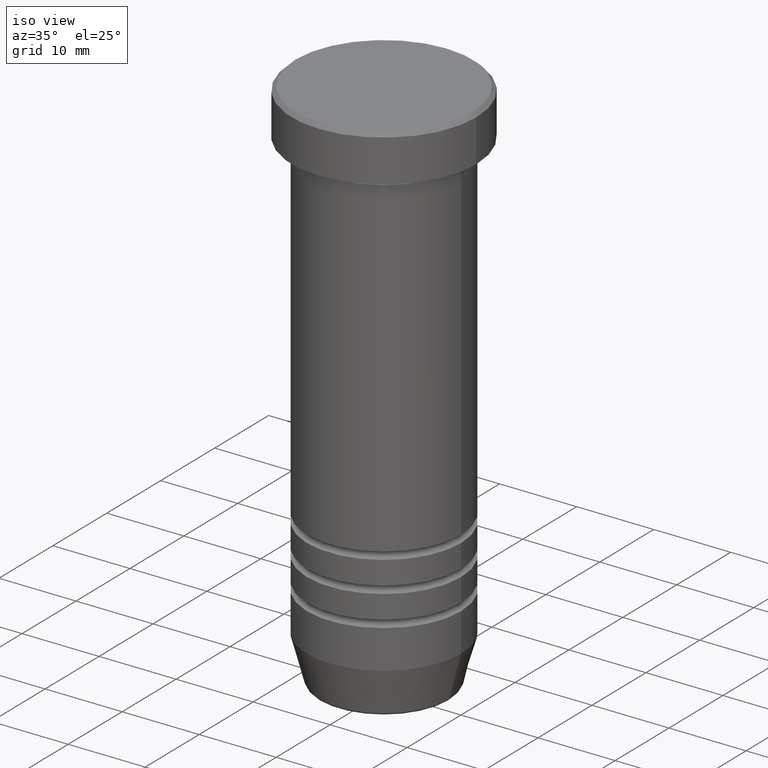
[diagram: clean part render]
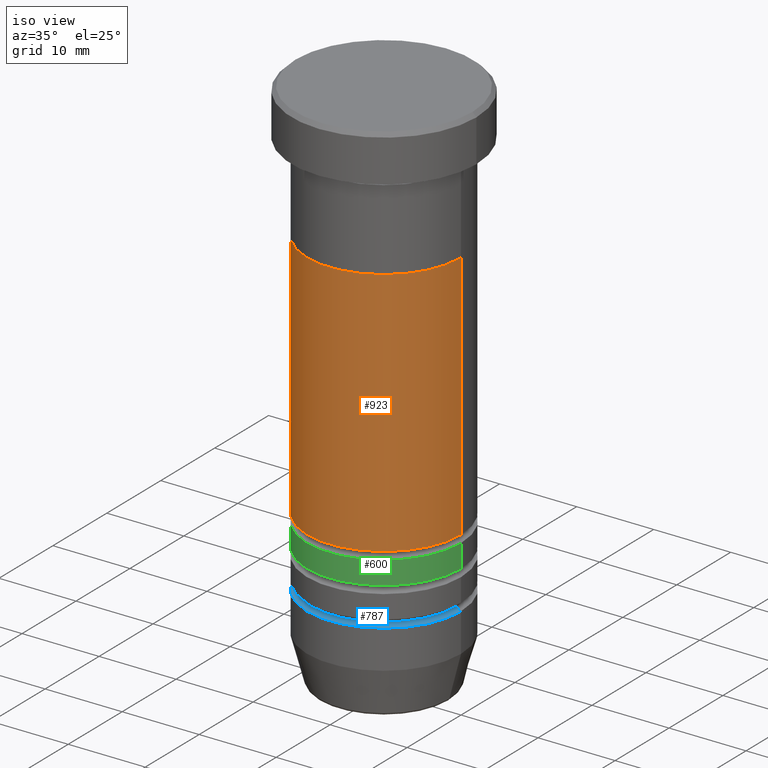
[diagram: same view with three faces highlighted in distinct colors, each labeled with its STEP entity id]
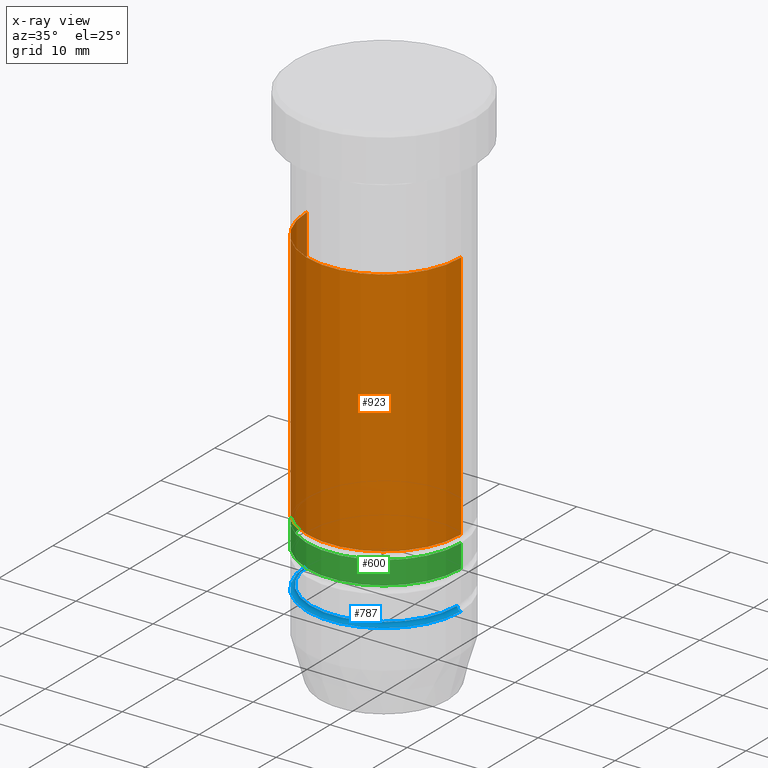
[diagram: x-ray of the same camera — body ghosted, the three highlighted faces saturated]
A machine part, iso view with three faces highlighted in distinct colors.
The next image is the same camera in x-ray (body ghosted, the three faces saturated) — at least one of them is partly hidden behind the body in this view.
Their STEP definitions:

[orange] entity #923 — the highlighted cylindrical surface (partial cylindrical patch) has radius 10 mm, axis along (-0, -0, 1).
#1 = CARTESIAN_POINT ( 'NONE',  ( -9.999999999999996447, 1.224646799147352862E-15, 0.000000000000000000 ) ) ;
#4 = DIRECTION ( 'NONE',  ( -0.000000000000000000, -0.000000000000000000, 1.000000000000000000 ) ) ;
#52 = CARTESIAN_POINT ( 'NONE',  ( -10.00000000000000178, 1.224646799147353454E-15, -17.50000000000000000 ) ) ;
#70 = LINE ( 'NONE', #1, #260 ) ;
#141 = CARTESIAN_POINT ( 'NONE',  ( 0.000000000000000000, 0.000000000000000000, 0.000000000000000000 ) ) ;
#179 = CARTESIAN_POINT ( 'NONE',  ( 9.999999999999996447, 0.000000000000000000, 0.000000000000000000 ) ) ;
#185 = LINE ( 'NONE', #179, #613 ) ;
#195 = EDGE_CURVE ( 'NONE', #287, #918, #70, .T. ) ;
#228 = CARTESIAN_POINT ( 'NONE',  ( 9.999999999999992895, 0.000000000000000000, -50.00000000000001421 ) ) ;
#245 = ORIENTED_EDGE ( 'NONE', *, *, #315, .T. ) ;
#260 = VECTOR ( 'NONE', #961, 1000.000000000000000 ) ;
#287 = VERTEX_POINT ( 'NONE', #754 ) ;
#291 = AXIS2_PLACEMENT_3D ( 'NONE', #452, #4, #938 ) ;
#315 = EDGE_CURVE ( 'NONE', #550, #320, #185, .T. ) ;
#320 = VERTEX_POINT ( 'NONE', #430 ) ;
#373 = AXIS2_PLACEMENT_3D ( 'NONE', #465, #865, #965 ) ;
#377 = EDGE_CURVE ( 'NONE', #918, #320, #1022, .T. ) ;
#407 = CIRCLE ( 'NONE', #373, 9.999999999999992895 ) ;
#430 = CARTESIAN_POINT ( 'NONE',  ( 10.00000000000000000, 0.000000000000000000, -17.50000000000000000 ) ) ;
#438 = ORIENTED_EDGE ( 'NONE', *, *, #469, .T. ) ;
#452 = CARTESIAN_POINT ( 'NONE',  ( 0.000000000000000000, 0.000000000000000000, -17.50000000000000000 ) ) ;
#465 = CARTESIAN_POINT ( 'NONE',  ( 0.000000000000000000, 0.000000000000000000, -50.00000000000001421 ) ) ;
#469 = EDGE_CURVE ( 'NONE', #287, #550, #407, .T. ) ;
#496 = EDGE_LOOP ( 'NONE', ( #907, #438, #245, #778 ) ) ;
#512 = DIRECTION ( 'NONE',  ( -0.000000000000000000, -0.000000000000000000, 1.000000000000000000 ) ) ;
#537 = DIRECTION ( 'NONE',  ( -0.000000000000000000, -0.000000000000000000, 1.000000000000000000 ) ) ;
#550 = VERTEX_POINT ( 'NONE', #228 ) ;
#613 = VECTOR ( 'NONE', #512, 1000.000000000000000 ) ;
#699 = CYLINDRICAL_SURFACE ( 'NONE', #813, 9.999999999999996447 ) ;
#754 = CARTESIAN_POINT ( 'NONE',  ( -9.999999999999992895, 1.224646799147352665E-15, -50.00000000000001421 ) ) ;
#778 = ORIENTED_EDGE ( 'NONE', *, *, #377, .F. ) ;
#796 = DIRECTION ( 'NONE',  ( 1.000000000000000000, 0.000000000000000000, 0.000000000000000000 ) ) ;
#813 = AXIS2_PLACEMENT_3D ( 'NONE', #141, #537, #796 ) ;
#853 = FACE_OUTER_BOUND ( 'NONE', #496, .T. ) ;
#865 = DIRECTION ( 'NONE',  ( -0.000000000000000000, -0.000000000000000000, 1.000000000000000000 ) ) ;
#907 = ORIENTED_EDGE ( 'NONE', *, *, #195, .F. ) ;
#918 = VERTEX_POINT ( 'NONE', #52 ) ;
#923 = ADVANCED_FACE ( 'NONE', ( #853 ), #699, .T. ) ;
#938 = DIRECTION ( 'NONE',  ( 1.000000000000000000, 0.000000000000000000, 0.000000000000000000 ) ) ;
#961 = DIRECTION ( 'NONE',  ( -0.000000000000000000, -0.000000000000000000, 1.000000000000000000 ) ) ;
#965 = DIRECTION ( 'NONE',  ( 1.000000000000000000, 0.000000000000000000, 0.000000000000000000 ) ) ;
#1022 = CIRCLE ( 'NONE', #291, 10.00000000000000000 ) ;

[blue] entity #787 — the highlighted toroidal blend (fillet) surface has major radius 10 mm and minor (blend) radius 0.5 mm.
#15 = AXIS2_PLACEMENT_3D ( 'NONE', #525, #120, #285 ) ;
#21 = FACE_OUTER_BOUND ( 'NONE', #455, .T. ) ;
#83 = DIRECTION ( 'NONE',  ( 1.000000000000000000, 0.000000000000000000, 0.000000000000000000 ) ) ;
#86 = EDGE_CURVE ( 'NONE', #891, #570, #677, .T. ) ;
#120 = DIRECTION ( 'NONE',  ( -1.224646799147353207E-16, 1.000000000000000000, 0.000000000000000000 ) ) ;
#128 = AXIS2_PLACEMENT_3D ( 'NONE', #484, #807, #83 ) ;
#151 = EDGE_CURVE ( 'NONE', #333, #891, #390, .T. ) ;
#187 = ORIENTED_EDGE ( 'NONE', *, *, #151, .T. ) ;
#197 = ORIENTED_EDGE ( 'NONE', *, *, #690, .T. ) ;
#237 = VERTEX_POINT ( 'NONE', #243 ) ;
#239 = CIRCLE ( 'NONE', #711, 9.499999999999994671 ) ;
#243 = CARTESIAN_POINT ( 'NONE',  ( -9.499999999999994671, 1.194030629168668681E-15, -58.50000000000000711 ) ) ;
#251 = AXIS2_PLACEMENT_3D ( 'NONE', #1053, #897, #980 ) ;
#277 = CARTESIAN_POINT ( 'NONE',  ( -10.00000000000000000, 1.224646799147353256E-15, -59.00000000000001421 ) ) ;
#285 = DIRECTION ( 'NONE',  ( -1.000000000000000000, -1.224646799147353454E-16, 0.000000000000000000 ) ) ;
#333 = VERTEX_POINT ( 'NONE', #277 ) ;
#335 = DIRECTION ( 'NONE',  ( 1.000000000000000000, 0.000000000000000000, 0.000000000000000000 ) ) ;
#390 = CIRCLE ( 'NONE', #128, 10.00000000000000000 ) ;
#409 = AXIS2_PLACEMENT_3D ( 'NONE', #682, #924, #434 ) ;
#418 = CIRCLE ( 'NONE', #251, 0.5000000000000004441 ) ;
#434 = DIRECTION ( 'NONE',  ( -1.000000000000000000, 0.000000000000000000, 0.000000000000000000 ) ) ;
#455 = EDGE_LOOP ( 'NONE', ( #187, #1000, #197, #725 ) ) ;
#484 = CARTESIAN_POINT ( 'NONE',  ( 0.000000000000000000, 0.000000000000000000, -59.00000000000001421 ) ) ;
#525 = CARTESIAN_POINT ( 'NONE',  ( 9.999999999999994671, 1.224646799147352665E-15, -58.50000000000000711 ) ) ;
#570 = VERTEX_POINT ( 'NONE', #719 ) ;
#677 = CIRCLE ( 'NONE', #15, 0.5000000000000004441 ) ;
#682 = CARTESIAN_POINT ( 'NONE',  ( 0.000000000000000000, 0.000000000000000000, -58.50000000000000711 ) ) ;
#690 = EDGE_CURVE ( 'NONE', #570, #237, #239, .T. ) ;
#711 = AXIS2_PLACEMENT_3D ( 'NONE', #816, #889, #335 ) ;
#719 = CARTESIAN_POINT ( 'NONE',  ( 9.499999999999994671, 0.000000000000000000, -58.50000000000000711 ) ) ;
#725 = ORIENTED_EDGE ( 'NONE', *, *, #1047, .F. ) ;
#787 = ADVANCED_FACE ( 'NONE', ( #21 ), #820, .F. ) ;
#807 = DIRECTION ( 'NONE',  ( -0.000000000000000000, -0.000000000000000000, 1.000000000000000000 ) ) ;
#816 = CARTESIAN_POINT ( 'NONE',  ( 0.000000000000000000, 0.000000000000000000, -58.50000000000000711 ) ) ;
#820 = TOROIDAL_SURFACE ( 'NONE', #409, 9.999999999999994671, 0.5000000000000000000 ) ;
#869 = CARTESIAN_POINT ( 'NONE',  ( 10.00000000000000000, 0.000000000000000000, -59.00000000000001421 ) ) ;
#889 = DIRECTION ( 'NONE',  ( 0.000000000000000000, 0.000000000000000000, -1.000000000000000000 ) ) ;
#891 = VERTEX_POINT ( 'NONE', #869 ) ;
#897 = DIRECTION ( 'NONE',  ( -0.000000000000000000, -1.000000000000000000, -0.000000000000000000 ) ) ;
#924 = DIRECTION ( 'NONE',  ( 0.000000000000000000, 0.000000000000000000, -1.000000000000000000 ) ) ;
#980 = DIRECTION ( 'NONE',  ( 0.000000000000000000, 0.000000000000000000, -1.000000000000000000 ) ) ;
#1000 = ORIENTED_EDGE ( 'NONE', *, *, #86, .T. ) ;
#1047 = EDGE_CURVE ( 'NONE', #333, #237, #418, .T. ) ;
#1053 = CARTESIAN_POINT ( 'NONE',  ( -9.999999999999994671, 0.000000000000000000, -58.50000000000000711 ) ) ;

[green] entity #600 — the highlighted cylindrical surface (partial cylindrical patch) has radius 10 mm, axis along (-0, -0, 1).
#2 = VERTEX_POINT ( 'NONE', #454 ) ;
#17 = DIRECTION ( 'NONE',  ( -0.000000000000000000, -0.000000000000000000, 1.000000000000000000 ) ) ;
#30 = EDGE_LOOP ( 'NONE', ( #829, #219, #263, #436 ) ) ;
#99 = VECTOR ( 'NONE', #17, 1000.000000000000000 ) ;
#105 = CARTESIAN_POINT ( 'NONE',  ( -9.999999999999998224, 1.224646799147353059E-15, 0.000000000000000000 ) ) ;
#219 = ORIENTED_EDGE ( 'NONE', *, *, #765, .T. ) ;
#253 = DIRECTION ( 'NONE',  ( -0.000000000000000000, -0.000000000000000000, 1.000000000000000000 ) ) ;
#263 = ORIENTED_EDGE ( 'NONE', *, *, #398, .T. ) ;
#324 = FACE_OUTER_BOUND ( 'NONE', #30, .T. ) ;
#348 = EDGE_CURVE ( 'NONE', #944, #2, #499, .T. ) ;
#398 = EDGE_CURVE ( 'NONE', #691, #676, #828, .T. ) ;
#403 = DIRECTION ( 'NONE',  ( -0.000000000000000000, -0.000000000000000000, 1.000000000000000000 ) ) ;
#421 = CARTESIAN_POINT ( 'NONE',  ( 9.999999999999998224, 0.000000000000000000, 0.000000000000000000 ) ) ;
#436 = ORIENTED_EDGE ( 'NONE', *, *, #771, .F. ) ;
#440 = DIRECTION ( 'NONE',  ( 1.000000000000000000, 0.000000000000000000, 0.000000000000000000 ) ) ;
#454 = CARTESIAN_POINT ( 'NONE',  ( -10.00000000000000000, 1.224646799147353256E-15, -51.00000000000001421 ) ) ;
#460 = AXIS2_PLACEMENT_3D ( 'NONE', #687, #669, #440 ) ;
#498 = CARTESIAN_POINT ( 'NONE',  ( 0.000000000000000000, 0.000000000000000000, 0.000000000000000000 ) ) ;
#499 = LINE ( 'NONE', #105, #99 ) ;
#596 = CARTESIAN_POINT ( 'NONE',  ( 0.000000000000000000, 0.000000000000000000, -51.00000000000001421 ) ) ;
#600 = ADVANCED_FACE ( 'NONE', ( #324 ), #987, .T. ) ;
#665 = CARTESIAN_POINT ( 'NONE',  ( 9.999999999999998224, 0.000000000000000000, -54.00000000000000711 ) ) ;
#669 = DIRECTION ( 'NONE',  ( -0.000000000000000000, -0.000000000000000000, 1.000000000000000000 ) ) ;
#676 = VERTEX_POINT ( 'NONE', #1054 ) ;
#687 = CARTESIAN_POINT ( 'NONE',  ( 0.000000000000000000, 0.000000000000000000, -54.00000000000000711 ) ) ;
#691 = VERTEX_POINT ( 'NONE', #665 ) ;
#727 = CIRCLE ( 'NONE', #866, 10.00000000000000000 ) ;
#752 = DIRECTION ( 'NONE',  ( 1.000000000000000000, 0.000000000000000000, 0.000000000000000000 ) ) ;
#765 = EDGE_CURVE ( 'NONE', #944, #691, #783, .T. ) ;
#771 = EDGE_CURVE ( 'NONE', #2, #676, #727, .T. ) ;
#783 = CIRCLE ( 'NONE', #460, 9.999999999999998224 ) ;
#811 = DIRECTION ( 'NONE',  ( 1.000000000000000000, 0.000000000000000000, 0.000000000000000000 ) ) ;
#828 = LINE ( 'NONE', #421, #848 ) ;
#829 = ORIENTED_EDGE ( 'NONE', *, *, #348, .F. ) ;
#848 = VECTOR ( 'NONE', #253, 1000.000000000000000 ) ;
#866 = AXIS2_PLACEMENT_3D ( 'NONE', #596, #1002, #752 ) ;
#944 = VERTEX_POINT ( 'NONE', #1049 ) ;
#987 = CYLINDRICAL_SURFACE ( 'NONE', #992, 9.999999999999998224 ) ;
#992 = AXIS2_PLACEMENT_3D ( 'NONE', #498, #403, #811 ) ;
#1002 = DIRECTION ( 'NONE',  ( -0.000000000000000000, -0.000000000000000000, 1.000000000000000000 ) ) ;
#1049 = CARTESIAN_POINT ( 'NONE',  ( -9.999999999999998224, 1.224646799147353059E-15, -54.00000000000000711 ) ) ;
#1054 = CARTESIAN_POINT ( 'NONE',  ( 10.00000000000000000, 0.000000000000000000, -51.00000000000001421 ) ) ;